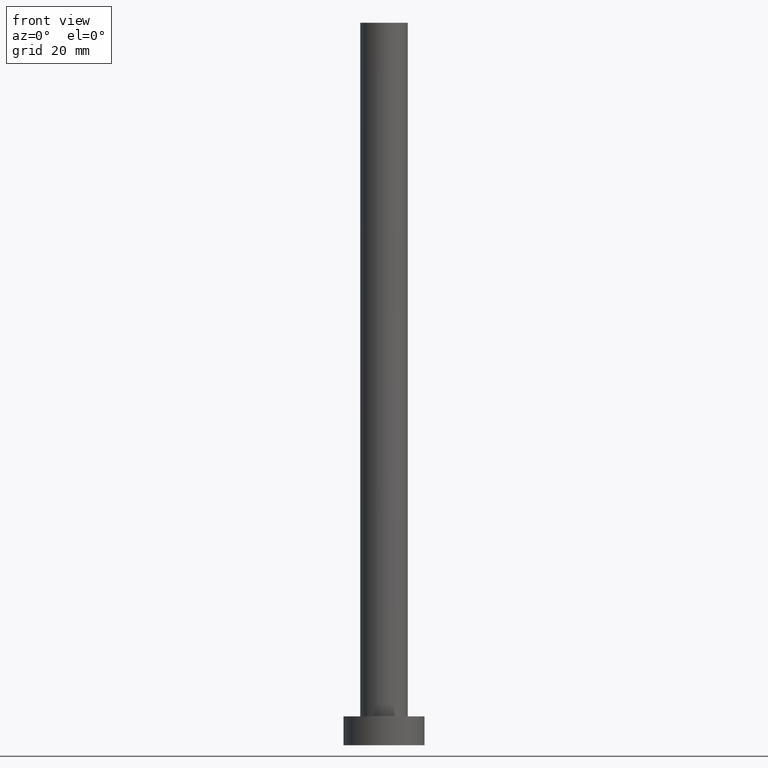
[diagram: clean part render]
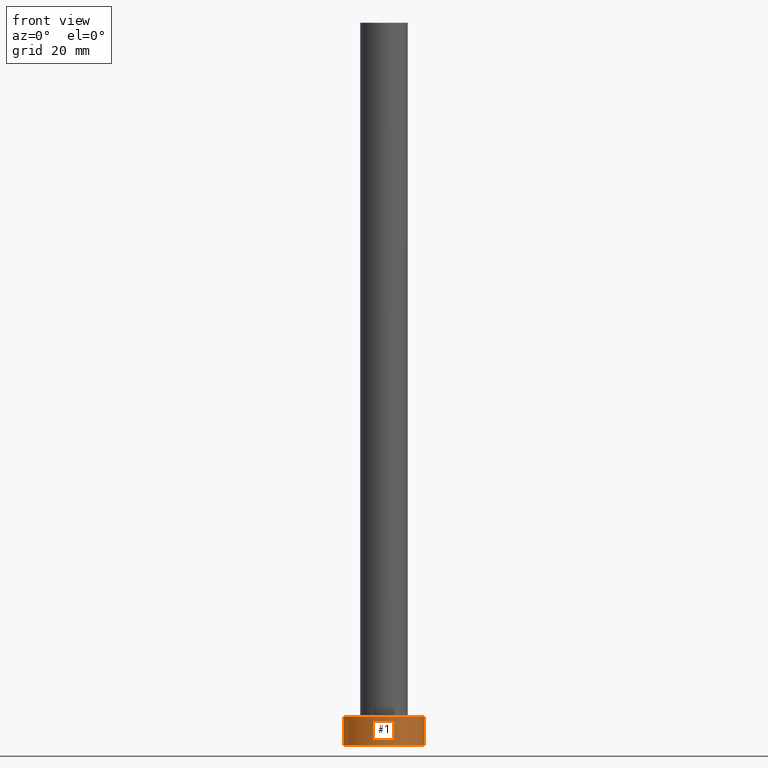
[diagram: same view with one face highlighted and labeled with its STEP entity id]
A machine part, front view. The second image highlights one B-rep face of the part: STEP entity #1.
In plain terms, the highlighted cylindrical surface (partial cylindrical patch) has radius 7 mm, axis along (-0, -0, -1).
Its self-contained STEP definition (entity closure, byte-faithful):
#1 = ADVANCED_FACE ( 'NONE', ( #138 ), #180, .T. ) ;
#2 = ORIENTED_EDGE ( 'NONE', *, *, #161, .T. ) ;
#19 = VERTEX_POINT ( 'NONE', #199 ) ;
#33 = AXIS2_PLACEMENT_3D ( 'NONE', #197, #121, #236 ) ;
#38 = VERTEX_POINT ( 'NONE', #213 ) ;
#42 = ORIENTED_EDGE ( 'NONE', *, *, #220, .F. ) ;
#45 = AXIS2_PLACEMENT_3D ( 'NONE', #83, #76, #173 ) ;
#47 = EDGE_CURVE ( 'NONE', #38, #240, #216, .T. ) ;
#51 = AXIS2_PLACEMENT_3D ( 'NONE', #82, #192, #248 ) ;
#57 = EDGE_CURVE ( 'NONE', #19, #72, #245, .T. ) ;
#65 = CIRCLE ( 'NONE', #45, 7.000000000000000000 ) ;
#72 = VERTEX_POINT ( 'NONE', #104 ) ;
#76 = DIRECTION ( 'NONE',  ( 0.000000000000000000, 0.000000000000000000, 1.000000000000000000 ) ) ;
#82 = CARTESIAN_POINT ( 'NONE',  ( 0.000000000000000000, 0.000000000000000000, 0.000000000000000000 ) ) ;
#83 = CARTESIAN_POINT ( 'NONE',  ( 0.000000000000000000, 0.000000000000000000, 5.000000000000000000 ) ) ;
#103 = VECTOR ( 'NONE', #146, 1000.000000000000000 ) ;
#104 = CARTESIAN_POINT ( 'NONE',  ( 7.000000000000000000, 8.572527594031473190E-16, 0.000000000000000000 ) ) ;
#108 = VECTOR ( 'NONE', #188, 1000.000000000000000 ) ;
#119 = ORIENTED_EDGE ( 'NONE', *, *, #57, .F. ) ;
#121 = DIRECTION ( 'NONE',  ( -0.000000000000000000, -0.000000000000000000, -1.000000000000000000 ) ) ;
#125 = EDGE_LOOP ( 'NONE', ( #119, #42, #217, #2 ) ) ;
#135 = CIRCLE ( 'NONE', #51, 7.000000000000000000 ) ;
#138 = FACE_OUTER_BOUND ( 'NONE', #125, .T. ) ;
#146 = DIRECTION ( 'NONE',  ( -0.000000000000000000, -0.000000000000000000, -1.000000000000000000 ) ) ;
#161 = EDGE_CURVE ( 'NONE', #240, #72, #135, .T. ) ;
#168 = CARTESIAN_POINT ( 'NONE',  ( 7.000000000000000000, 8.572527594031473190E-16, 5.000000000000000000 ) ) ;
#173 = DIRECTION ( 'NONE',  ( 1.000000000000000000, 0.000000000000000000, 0.000000000000000000 ) ) ;
#180 = CYLINDRICAL_SURFACE ( 'NONE', #33, 7.000000000000000000 ) ;
#188 = DIRECTION ( 'NONE',  ( -0.000000000000000000, -0.000000000000000000, -1.000000000000000000 ) ) ;
#192 = DIRECTION ( 'NONE',  ( 0.000000000000000000, 0.000000000000000000, 1.000000000000000000 ) ) ;
#197 = CARTESIAN_POINT ( 'NONE',  ( 0.000000000000000000, 0.000000000000000000, 5.000000000000000000 ) ) ;
#199 = CARTESIAN_POINT ( 'NONE',  ( 7.000000000000000000, 8.572527594031473190E-16, 5.000000000000000000 ) ) ;
#201 = CARTESIAN_POINT ( 'NONE',  ( -7.000000000000000000, 0.000000000000000000, 5.000000000000000000 ) ) ;
#213 = CARTESIAN_POINT ( 'NONE',  ( -7.000000000000000000, 0.000000000000000000, 5.000000000000000000 ) ) ;
#216 = LINE ( 'NONE', #201, #108 ) ;
#217 = ORIENTED_EDGE ( 'NONE', *, *, #47, .T. ) ;
#220 = EDGE_CURVE ( 'NONE', #38, #19, #65, .T. ) ;
#236 = DIRECTION ( 'NONE',  ( -1.000000000000000000, 0.000000000000000000, 0.000000000000000000 ) ) ;
#240 = VERTEX_POINT ( 'NONE', #255 ) ;
#245 = LINE ( 'NONE', #168, #103 ) ;
#248 = DIRECTION ( 'NONE',  ( 1.000000000000000000, 0.000000000000000000, 0.000000000000000000 ) ) ;
#255 = CARTESIAN_POINT ( 'NONE',  ( -7.000000000000000000, 0.000000000000000000, 0.000000000000000000 ) ) ;